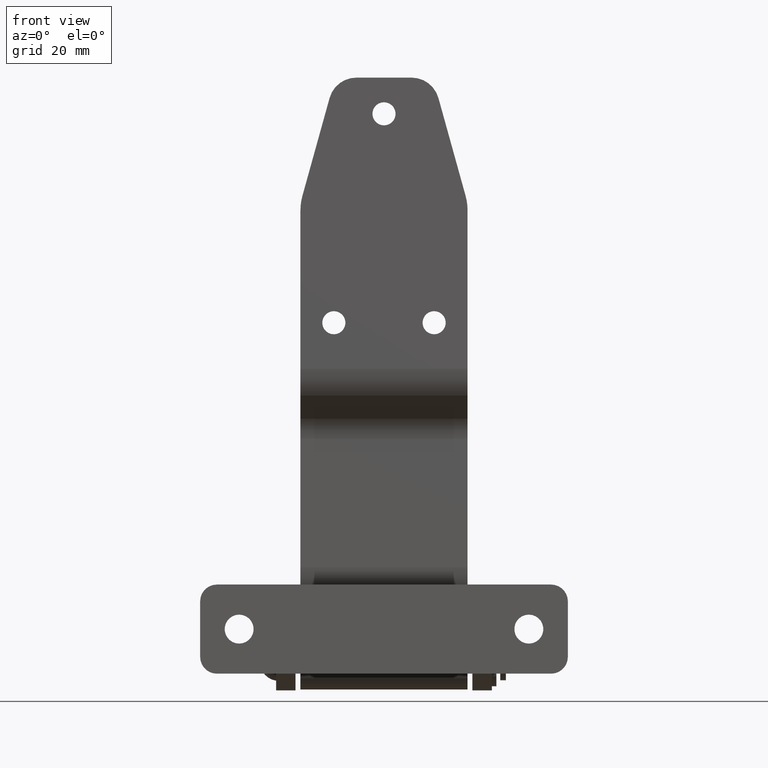
[diagram: clean part render]
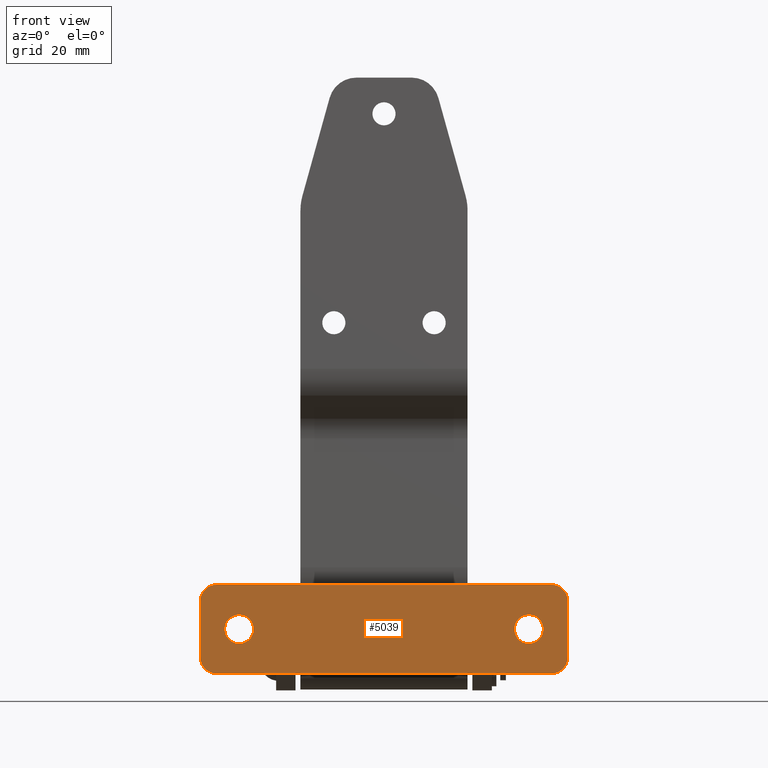
[diagram: same view with one face highlighted and labeled with its STEP entity id]
A machine part, front view. The second image highlights one B-rep face of the part: STEP entity #5039.
In plain terms, the highlighted planar face has unit normal (0, 1, 0).
Its self-contained STEP definition (entity closure, byte-faithful):
#31 = EDGE_CURVE ( 'NONE', #3107, #3108, #4173, .T. ) ;
#32 = EDGE_CURVE ( 'NONE', #3047, #3028, #4174, .T. ) ;
#33 = EDGE_CURVE ( 'NONE', #3046, #3019, #4526, .T. ) ;
#68 = VECTOR ( 'NONE', #2163, 1000.000000000000000 ) ;
#264 = VECTOR ( 'NONE', #2536, 1000.000000000000000 ) ;
#393 = EDGE_CURVE ( 'NONE', #3019, #3051, #4185, .T. ) ;
#413 = CARTESIAN_POINT ( 'NONE',  ( -66.00000000000000000, -46.00000000000000000, 22.00000000000000000 ) ) ;
#504 = CARTESIAN_POINT ( 'NONE',  ( 66.00000000000000000, -46.00000000000000000, 1.999999999999999600 ) ) ;
#513 = CARTESIAN_POINT ( 'NONE',  ( -66.00000000000000000, -46.00000000000000000, 1.999999999999999100 ) ) ;
#530 = CARTESIAN_POINT ( 'NONE',  ( 60.00000000000000700, -46.00000000000000000, 27.99999999999999600 ) ) ;
#531 = CARTESIAN_POINT ( 'NONE',  ( 66.00000000000000000, -46.00000000000000000, 22.00000000000000000 ) ) ;
#532 = CARTESIAN_POINT ( 'NONE',  ( -60.00000000000000700, -46.00000000000000000, -3.999999999999999100 ) ) ;
#534 = CARTESIAN_POINT ( 'NONE',  ( -60.00000000000000700, -46.00000000000000000, 28.00000000000000000 ) ) ;
#536 = CARTESIAN_POINT ( 'NONE',  ( 60.00000000000000700, -46.00000000000000000, -3.999999999999999100 ) ) ;
#587 = CARTESIAN_POINT ( 'NONE',  ( 52.00000000000000000, -46.00000000000000000, 17.19999999999999900 ) ) ;
#592 = CARTESIAN_POINT ( 'NONE',  ( -52.00000000000000000, -46.00000000000000000, 17.19999999999999900 ) ) ;
#593 = CARTESIAN_POINT ( 'NONE',  ( -52.00000000000000000, -46.00000000000000000, 6.800000000000000700 ) ) ;
#606 = CARTESIAN_POINT ( 'NONE',  ( 52.00000000000000000, -46.00000000000000000, 6.800000000000001600 ) ) ;
#976 = ORIENTED_EDGE ( 'NONE', *, *, #1893, .F. ) ;
#977 = ORIENTED_EDGE ( 'NONE', *, *, #32, .F. ) ;
#978 = ORIENTED_EDGE ( 'NONE', *, *, #393, .F. ) ;
#979 = ORIENTED_EDGE ( 'NONE', *, *, #31, .T. ) ;
#980 = ORIENTED_EDGE ( 'NONE', *, *, #5078, .F. ) ;
#1156 = CARTESIAN_POINT ( 'NONE',  ( 60.00000000000000700, -46.00000000000000000, 2.000000000000000000 ) ) ;
#1157 = DIRECTION ( 'NONE',  ( -0.0000000000000000000, 1.000000000000000000, -0.0000000000000000000 ) ) ;
#1158 = DIRECTION ( 'NONE',  ( 0.0000000000000000000, 0.0000000000000000000, -1.000000000000000000 ) ) ;
#1818 = EDGE_CURVE ( 'NONE', #3028, #2562, #2161, .T. ) ;
#1824 = EDGE_CURVE ( 'NONE', #2562, #3049, #4218, .T. ) ;
#1827 = EDGE_CURVE ( 'NONE', #3102, #3121, #4220, .T. ) ;
#1876 = EDGE_CURVE ( 'NONE', #3045, #3046, #4238, .T. ) ;
#1893 = EDGE_CURVE ( 'NONE', #3049, #3045, #2534, .T. ) ;
#1895 = AXIS2_PLACEMENT_3D ( 'NONE', #2188, #2189, #2190 ) ;
#1914 = AXIS2_PLACEMENT_3D ( 'NONE', #2170, #2180, #2181 ) ;
#1937 = AXIS2_PLACEMENT_3D ( 'NONE', #4522, #4523, #4524 ) ;
#1950 = VECTOR ( 'NONE', #4528, 1000.000000000000000 ) ;
#1951 = AXIS2_PLACEMENT_3D ( 'NONE', #4519, #4520, #4521 ) ;
#2161 = LINE ( 'NONE', #2162, #68 ) ;
#2162 = CARTESIAN_POINT ( 'NONE',  ( -66.00000000000000000, -46.00000000000000000, 1.999999999999999100 ) ) ;
#2163 = DIRECTION ( 'NONE',  ( 0.0000000000000000000, 0.0000000000000000000, 1.000000000000000000 ) ) ;
#2170 = CARTESIAN_POINT ( 'NONE',  ( -60.00000000000000700, -46.00000000000000000, 22.00000000000000000 ) ) ;
#2180 = DIRECTION ( 'NONE',  ( 0.0000000000000000000, 1.000000000000000000, 0.0000000000000000000 ) ) ;
#2181 = DIRECTION ( 'NONE',  ( 0.0000000000000000000, 0.0000000000000000000, 1.000000000000000000 ) ) ;
#2188 = CARTESIAN_POINT ( 'NONE',  ( 52.00000000000000000, -46.00000000000000000, 12.00000000000000000 ) ) ;
#2189 = DIRECTION ( 'NONE',  ( 0.0000000000000000000, 1.000000000000000000, 0.0000000000000000000 ) ) ;
#2190 = DIRECTION ( 'NONE',  ( 0.0000000000000000000, 0.0000000000000000000, 1.000000000000000000 ) ) ;
#2481 = CARTESIAN_POINT ( 'NONE',  ( 60.00000000000000700, -46.00000000000000000, 22.00000000000000000 ) ) ;
#2482 = DIRECTION ( 'NONE',  ( 0.0000000000000000000, 1.000000000000000000, 0.0000000000000000000 ) ) ;
#2483 = DIRECTION ( 'NONE',  ( 0.0000000000000000000, 0.0000000000000000000, 1.000000000000000000 ) ) ;
#2534 = LINE ( 'NONE', #2535, #264 ) ;
#2535 = CARTESIAN_POINT ( 'NONE',  ( -60.00000000000000700, -46.00000000000000000, 28.00000000000000000 ) ) ;
#2536 = DIRECTION ( 'NONE',  ( 1.000000000000000000, 0.0000000000000000000, 0.0000000000000000000 ) ) ;
#2562 = VERTEX_POINT ( 'NONE', #413 ) ;
#2625 = ORIENTED_EDGE ( 'NONE', *, *, #1818, .F. ) ;
#2626 = ORIENTED_EDGE ( 'NONE', *, *, #1827, .T. ) ;
#2627 = ORIENTED_EDGE ( 'NONE', *, *, #5028, .T. ) ;
#3019 = VERTEX_POINT ( 'NONE', #504 ) ;
#3028 = VERTEX_POINT ( 'NONE', #513 ) ;
#3045 = VERTEX_POINT ( 'NONE', #530 ) ;
#3046 = VERTEX_POINT ( 'NONE', #531 ) ;
#3047 = VERTEX_POINT ( 'NONE', #532 ) ;
#3049 = VERTEX_POINT ( 'NONE', #534 ) ;
#3051 = VERTEX_POINT ( 'NONE', #536 ) ;
#3102 = VERTEX_POINT ( 'NONE', #587 ) ;
#3107 = VERTEX_POINT ( 'NONE', #592 ) ;
#3108 = VERTEX_POINT ( 'NONE', #593 ) ;
#3121 = VERTEX_POINT ( 'NONE', #606 ) ;
#3177 = ORIENTED_EDGE ( 'NONE', *, *, #1876, .F. ) ;
#3178 = ORIENTED_EDGE ( 'NONE', *, *, #33, .F. ) ;
#3179 = ORIENTED_EDGE ( 'NONE', *, *, #1824, .F. ) ;
#3197 = EDGE_LOOP ( 'NONE', ( #4427, #979 ) ) ;
#3198 = EDGE_LOOP ( 'NONE', ( #977, #980, #978, #3178, #3177, #976, #3179, #2625 ) ) ;
#3199 = EDGE_LOOP ( 'NONE', ( #2627, #2626 ) ) ;
#3448 = FACE_OUTER_BOUND ( 'NONE', #3198, .T. ) ;
#3450 = FACE_BOUND ( 'NONE', #3197, .T. ) ;
#3455 = FACE_BOUND ( 'NONE', #3199, .T. ) ;
#3457 = AXIS2_PLACEMENT_3D ( 'NONE', #3699, #3700, #3701 ) ;
#3560 = VECTOR ( 'NONE', #3832, 1000.000000000000000 ) ;
#3661 = CARTESIAN_POINT ( 'NONE',  ( 52.00000000000000000, -46.00000000000000000, 12.00000000000000000 ) ) ;
#3662 = DIRECTION ( 'NONE',  ( 0.0000000000000000000, 1.000000000000000000, 0.0000000000000000000 ) ) ;
#3663 = DIRECTION ( 'NONE',  ( 0.0000000000000000000, 0.0000000000000000000, 1.000000000000000000 ) ) ;
#3698 = PLANE ( 'NONE',  #3457 ) ;
#3699 = CARTESIAN_POINT ( 'NONE',  ( -60.00000000000000700, -46.00000000000000000, 2.000000000000000000 ) ) ;
#3700 = DIRECTION ( 'NONE',  ( 0.0000000000000000000, 1.000000000000000000, 0.0000000000000000000 ) ) ;
#3701 = DIRECTION ( 'NONE',  ( 0.0000000000000000000, -0.0000000000000000000, 1.000000000000000000 ) ) ;
#3830 = LINE ( 'NONE', #3831, #3560 ) ;
#3831 = CARTESIAN_POINT ( 'NONE',  ( -60.00000000000000700, -46.00000000000000000, -3.999999999999999100 ) ) ;
#3832 = DIRECTION ( 'NONE',  ( -1.000000000000000000, -0.0000000000000000000, -0.0000000000000000000 ) ) ;
#4158 = CARTESIAN_POINT ( 'NONE',  ( -52.00000000000000000, -46.00000000000000000, 12.00000000000000000 ) ) ;
#4162 = DIRECTION ( 'NONE',  ( 0.0000000000000000000, 1.000000000000000000, 0.0000000000000000000 ) ) ;
#4163 = DIRECTION ( 'NONE',  ( 0.0000000000000000000, 0.0000000000000000000, 1.000000000000000000 ) ) ;
#4173 = CIRCLE ( 'NONE', #1951, 5.200000000000000200 ) ;
#4174 = CIRCLE ( 'NONE', #1937, 5.999999999999998200 ) ;
#4185 = CIRCLE ( 'NONE', #5235, 5.999999999999998200 ) ;
#4218 = CIRCLE ( 'NONE', #1914, 5.999999999999998200 ) ;
#4220 = CIRCLE ( 'NONE', #1895, 5.200000000000000200 ) ;
#4238 = CIRCLE ( 'NONE', #5131, 5.999999999999998200 ) ;
#4303 = CIRCLE ( 'NONE', #4814, 5.200000000000000200 ) ;
#4306 = CIRCLE ( 'NONE', #4809, 5.200000000000000200 ) ;
#4427 = ORIENTED_EDGE ( 'NONE', *, *, #5016, .T. ) ;
#4519 = CARTESIAN_POINT ( 'NONE',  ( -52.00000000000000000, -46.00000000000000000, 12.00000000000000000 ) ) ;
#4520 = DIRECTION ( 'NONE',  ( 0.0000000000000000000, 1.000000000000000000, 0.0000000000000000000 ) ) ;
#4521 = DIRECTION ( 'NONE',  ( 0.0000000000000000000, 0.0000000000000000000, 1.000000000000000000 ) ) ;
#4522 = CARTESIAN_POINT ( 'NONE',  ( -60.00000000000000700, -46.00000000000000000, 2.000000000000000000 ) ) ;
#4523 = DIRECTION ( 'NONE',  ( 0.0000000000000000000, 1.000000000000000000, 0.0000000000000000000 ) ) ;
#4524 = DIRECTION ( 'NONE',  ( 0.0000000000000000000, 0.0000000000000000000, 1.000000000000000000 ) ) ;
#4526 = LINE ( 'NONE', #4527, #1950 ) ;
#4527 = CARTESIAN_POINT ( 'NONE',  ( 66.00000000000000000, -46.00000000000000000, 1.999999999999999100 ) ) ;
#4528 = DIRECTION ( 'NONE',  ( -0.0000000000000000000, -0.0000000000000000000, -1.000000000000000000 ) ) ;
#4809 = AXIS2_PLACEMENT_3D ( 'NONE', #3661, #3662, #3663 ) ;
#4814 = AXIS2_PLACEMENT_3D ( 'NONE', #4158, #4162, #4163 ) ;
#5016 = EDGE_CURVE ( 'NONE', #3108, #3107, #4303, .T. ) ;
#5028 = EDGE_CURVE ( 'NONE', #3121, #3102, #4306, .T. ) ;
#5039 = ADVANCED_FACE ( 'NONE', ( #3450, #3448, #3455 ), #3698, .F. ) ;
#5078 = EDGE_CURVE ( 'NONE', #3051, #3047, #3830, .T. ) ;
#5131 = AXIS2_PLACEMENT_3D ( 'NONE', #2481, #2482, #2483 ) ;
#5235 = AXIS2_PLACEMENT_3D ( 'NONE', #1156, #1157, #1158 ) ;